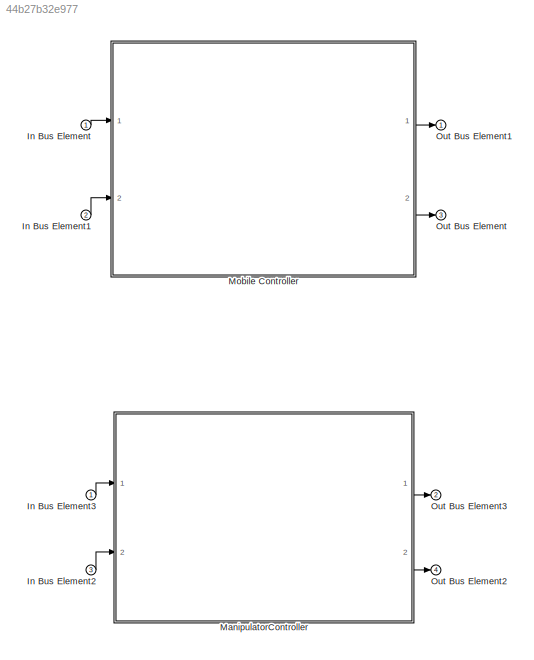
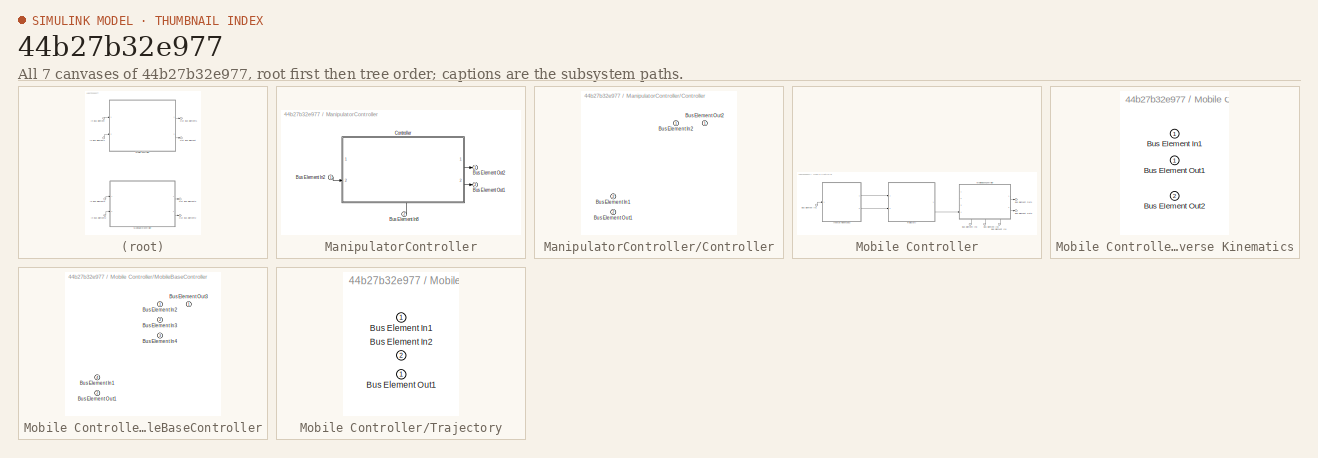
[diagram: thumbnail index - all 7 canvases of the model, root first then tree order]
MODEL slx_44b27b32e977
KIND model
CONFIG AbsTol = auto
CONFIG EnableMultiTasking = off
CONFIG FixedStep = auto
CONFIG MaxStep = auto
CONFIG MinStep = auto
CONFIG RelTol = 1e-3
CONFIG SampleTimeConstraint = Unconstrained
CONFIG SolverName = FixedStepDiscrete
CONFIG StartTime = 0.0
CONFIG StopTime = 10.0
WORKSPACE source: mxarray member
WORKSPACE HighLevel: Simulink.Bus (value not decoded)
WORKSPACE ManipulatorSensorData: Simulink.Bus (value not decoded)
WORKSPACE MobileBaseSensorData: Simulink.Bus (value not decoded)
BLOCK [Inport] In Bus Element
BLOCK [Inport] In Bus Element1
  Port = 2
BLOCK [Inport] In Bus Element2
  Port = 3
BLOCK [Inport] In Bus Element3
BLOCK [SubSystem] ManipulatorController
  PortSchema = {"entries":[{"content":{"headerSize":26,"margin":15,"minimumSpacing":25,"sides":[{"content":{"connectorIds":["In1","In2"]},"type":"ConnectorPlacement.EquallySpacedRectSide","uuid":"c98ff4be-64d0-449e-9b1d-a8301930c005"},{"content":{"connectorIds":["Out1","Out2"],"side":"RIGHT"},"type":"ConnectorPlacement.EquallySpacedRectSide","uuid":"687eed08-6ff3-4e87-827e-4ed9dc740528"},{"content":{"connectorId...<+301ch>
  Ports = [2, 2]
  RequestExecContextInheritance = off
BLOCK [Inport] ManipulatorController/Bus Element In2
BLOCK [Inport] ManipulatorController/Bus Element In8
  Port = 2
BLOCK [Outport] ManipulatorController/Bus Element Out1
  Port = 2
BLOCK [Outport] ManipulatorController/Bus Element Out2
BLOCK [SubSystem] ManipulatorController/Controller
  PortSchema = {"entries":[{"content":{"headerSize":26,"margin":15,"minimumSpacing":25,"sides":[{"content":{"connectorIds":["In2"]},"type":"ConnectorPlacement.EquallySpacedRectSide","uuid":"c98ff4be-64d0-449e-9b1d-a8301930c005"},{"content":{"connectorIds":["Out1","Out2"],"side":"RIGHT"},"type":"ConnectorPlacement.EquallySpacedRectSide","uuid":"687eed08-6ff3-4e87-827e-4ed9dc740528"},{"content":{"connectorIds":[],...<+444ch>
  Ports = [2, 2]
  RequestExecContextInheritance = off
BLOCK [Inport] ManipulatorController/Controller/Bus Element In1
  Port = 2
BLOCK [Inport] ManipulatorController/Controller/Bus Element In2
BLOCK [Outport] ManipulatorController/Controller/Bus Element Out1
  Port = 2
BLOCK [Outport] ManipulatorController/Controller/Bus Element Out2
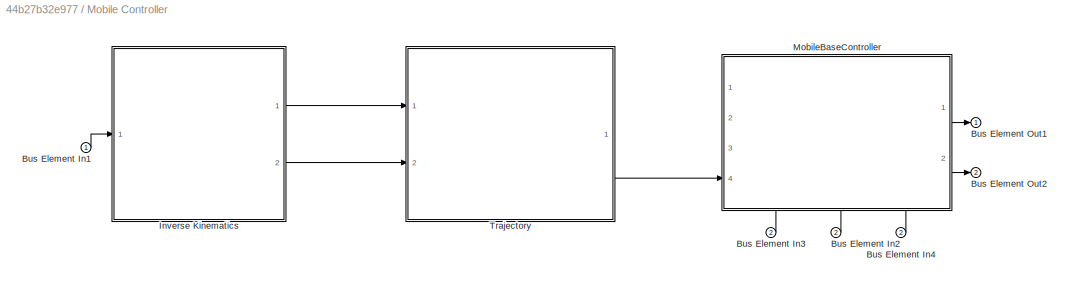
BLOCK [SubSystem] Mobile Controller
  PortSchema = {"entries":[{"content":{"headerSize":26,"margin":15,"minimumSpacing":25,"sides":[{"content":{"connectorIds":["In1","In2"]},"type":"ConnectorPlacement.EquallySpacedRectSide","uuid":"dd41dd12-49ec-4c74-984d-ae398e001f17"},{"content":{"connectorIds":["Out1","Out2"],"side":"RIGHT"},"type":"ConnectorPlacement.EquallySpacedRectSide","uuid":"7b6711d5-260d-4adb-8390-dd0a2fe64eed"},{"content":{"connectorId...<+301ch>
  Ports = [2, 2]
  RequestExecContextInheritance = off
BLOCK [Inport] Mobile Controller/Bus Element In1
BLOCK [Inport] Mobile Controller/Bus Element In2
  Port = 2
BLOCK [Inport] Mobile Controller/Bus Element In3
  Port = 2
BLOCK [Inport] Mobile Controller/Bus Element In4
  Port = 2
BLOCK [Outport] Mobile Controller/Bus Element Out1
BLOCK [Outport] Mobile Controller/Bus Element Out2
  Port = 2
BLOCK [SubSystem] Mobile Controller/Inverse Kinematics
  PortSchema = {"entries":[{"content":{"headerSize":26,"margin":15,"minimumSpacing":25,"sides":[{"content":{"connectorIds":["In1"]},"type":"ConnectorPlacement.EquallySpacedRectSide","uuid":"c98ff4be-64d0-449e-9b1d-a8301930c005"},{"content":{"connectorIds":["Out1","Out2"],"side":"RIGHT"},"type":"ConnectorPlacement.EquallySpacedRectSide","uuid":"687eed08-6ff3-4e87-827e-4ed9dc740528"},{"content":{"connectorIds":[],...<+295ch>
  Ports = [1, 2]
  RequestExecContextInheritance = off
BLOCK [Inport] Mobile Controller/Inverse Kinematics/Bus Element In1
BLOCK [Outport] Mobile Controller/Inverse Kinematics/Bus Element Out1
BLOCK [Outport] Mobile Controller/Inverse Kinematics/Bus Element Out2
  Port = 2
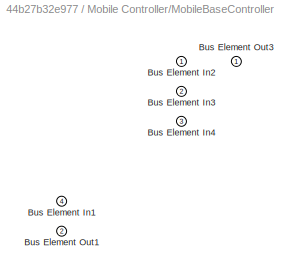
BLOCK [SubSystem] Mobile Controller/MobileBaseController
  PortSchema = {"entries":[{"content":{"headerSize":26,"margin":15,"minimumSpacing":25,"sides":[{"content":{"connectorIds":["In4"]},"type":"ConnectorPlacement.EquallySpacedRectSide","uuid":"c98ff4be-64d0-449e-9b1d-a8301930c005"},{"content":{"connectorIds":["Out1","Out2"],"side":"RIGHT"},"type":"ConnectorPlacement.EquallySpacedRectSide","uuid":"687eed08-6ff3-4e87-827e-4ed9dc740528"},{"content":{"connectorIds":[],...<+456ch>
  Ports = [4, 2]
  RequestExecContextInheritance = off
BLOCK [Inport] Mobile Controller/MobileBaseController/Bus Element In1
  Port = 4
BLOCK [Inport] Mobile Controller/MobileBaseController/Bus Element In2
BLOCK [Inport] Mobile Controller/MobileBaseController/Bus Element In3
  Port = 2
BLOCK [Inport] Mobile Controller/MobileBaseController/Bus Element In4
  Port = 3
BLOCK [Outport] Mobile Controller/MobileBaseController/Bus Element Out1
  Port = 2
BLOCK [Outport] Mobile Controller/MobileBaseController/Bus Element Out3
BLOCK [SubSystem] Mobile Controller/Trajectory
  PortSchema = {"entries":[{"content":{"headerSize":26,"margin":15,"minimumSpacing":25,"sides":[{"content":{"connectorIds":["In1","In2"]},"type":"ConnectorPlacement.EquallySpacedRectSide","uuid":"c98ff4be-64d0-449e-9b1d-a8301930c005"},{"content":{"connectorIds":["Out1"],"side":"RIGHT"},"type":"ConnectorPlacement.EquallySpacedRectSide","uuid":"687eed08-6ff3-4e87-827e-4ed9dc740528"},{"content":{"connectorIds":[],"...<+294ch>
  Ports = [2, 1]
  RequestExecContextInheritance = off
BLOCK [Inport] Mobile Controller/Trajectory/Bus Element In1
BLOCK [Inport] Mobile Controller/Trajectory/Bus Element In2
  Port = 2
BLOCK [Outport] Mobile Controller/Trajectory/Bus Element Out1
BLOCK [Outport] Out Bus Element
  Port = 3
BLOCK [Outport] Out Bus Element1
BLOCK [Outport] Out Bus Element2
  Port = 4
BLOCK [Outport] Out Bus Element3
  Port = 2
LINE In Bus Element1:1 -> Mobile Controller:2
LINE In Bus Element2:1 -> ManipulatorController:2
LINE In Bus Element3:1 -> ManipulatorController:1
LINE In Bus Element:1 -> Mobile Controller:1
LINE ManipulatorController/Bus Element In2:1 -> ManipulatorController/Controller:2
LINE ManipulatorController/Bus Element In8:1 -> ManipulatorController/Controller:1
LINE ManipulatorController/Controller:1 -> ManipulatorController/Bus Element Out2:1
LINE ManipulatorController/Controller:2 -> ManipulatorController/Bus Element Out1:1
LINE ManipulatorController:1 -> Out Bus Element3:1
LINE ManipulatorController:2 -> Out Bus Element2:1
LINE Mobile Controller/Bus Element In1:1 -> Mobile Controller/Inverse Kinematics:1
LINE Mobile Controller/Bus Element In2:1 -> Mobile Controller/MobileBaseController:2
LINE Mobile Controller/Bus Element In3:1 -> Mobile Controller/MobileBaseController:1
LINE Mobile Controller/Bus Element In4:1 -> Mobile Controller/MobileBaseController:3
LINE Mobile Controller/Inverse Kinematics:1 -> Mobile Controller/Trajectory:1
LINE Mobile Controller/Inverse Kinematics:2 -> Mobile Controller/Trajectory:2
LINE Mobile Controller/MobileBaseController:1 -> Mobile Controller/Bus Element Out1:1
LINE Mobile Controller/MobileBaseController:2 -> Mobile Controller/Bus Element Out2:1
LINE Mobile Controller/Trajectory:1 -> Mobile Controller/MobileBaseController:4
LINE Mobile Controller:1 -> Out Bus Element1:1
LINE Mobile Controller:2 -> Out Bus Element:1
